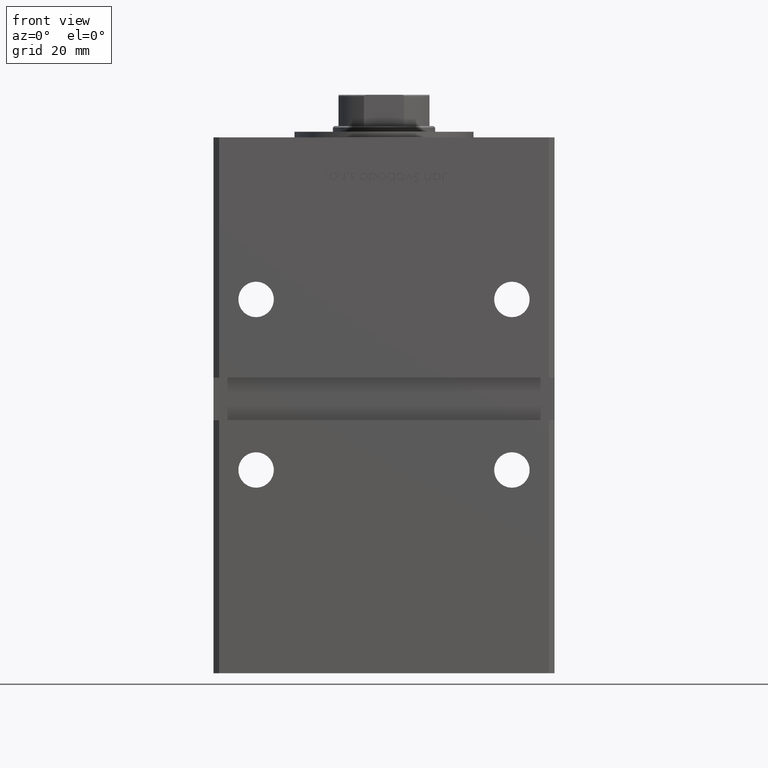
[diagram: clean part render]
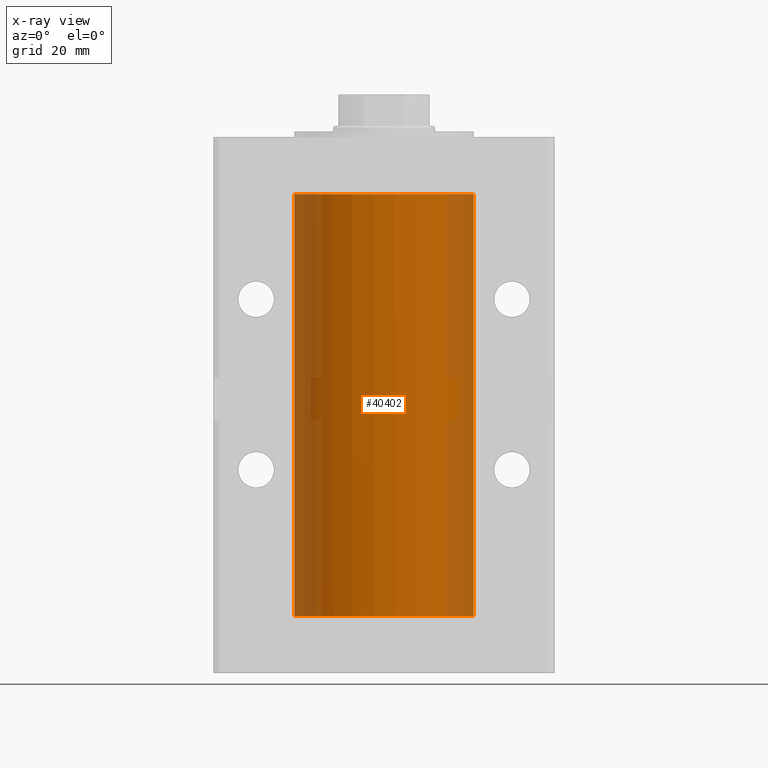
[diagram: x-ray — body ghosted, one internal face saturated and labeled with its STEP entity id]
A machine part, front view, then the same camera in x-ray: the body is ghosted and one INTERNAL B-rep face — a face not visible from any outside direction — is saturated and labeled: STEP entity #40402.
In plain terms, the highlighted cylindrical surface (partial cylindrical patch) has radius 31.5 mm, axis along (-0, -0, -1).
Its self-contained STEP definition (entity closure, byte-faithful):
#121 = CARTESIAN_POINT ( 'NONE',  ( 0.000000000000000000, 0.000000000000000000, 148.5000000000000000 ) ) ;
#2584 = VECTOR ( 'NONE', #42017, 1000.000000000000000 ) ;
#5220 = CARTESIAN_POINT ( 'NONE',  ( -31.50000000000000000, 0.000000000000000000, 148.5000000000000000 ) ) ;
#7145 = DIRECTION ( 'NONE',  ( -0.000000000000000000, 0.000000000000000000, 1.000000000000000000 ) ) ;
#10671 = CARTESIAN_POINT ( 'NONE',  ( 31.50000000000000000, 3.857637417314162689E-15, 0.000000000000000000 ) ) ;
#11090 = EDGE_CURVE ( 'NONE', #38745, #14733, #49705, .T. ) ;
#11946 = CYLINDRICAL_SURFACE ( 'NONE', #12916, 31.50000000000000000 ) ;
#12537 = ORIENTED_EDGE ( 'NONE', *, *, #15988, .T. ) ;
#12916 = AXIS2_PLACEMENT_3D ( 'NONE', #121, #44686, #16491 ) ;
#13659 = ORIENTED_EDGE ( 'NONE', *, *, #47388, .F. ) ;
#14733 = VERTEX_POINT ( 'NONE', #10671 ) ;
#15988 = EDGE_CURVE ( 'NONE', #27866, #14733, #45518, .T. ) ;
#16491 = DIRECTION ( 'NONE',  ( -1.000000000000000000, 0.000000000000000000, 0.000000000000000000 ) ) ;
#22105 = DIRECTION ( 'NONE',  ( -0.000000000000000000, 0.000000000000000000, 1.000000000000000000 ) ) ;
#23126 = ORIENTED_EDGE ( 'NONE', *, *, #11090, .F. ) ;
#24970 = VECTOR ( 'NONE', #29102, 1000.000000000000000 ) ;
#25101 = CARTESIAN_POINT ( 'NONE',  ( 31.50000000000000000, 3.857637417314162689E-15, 148.5000000000000000 ) ) ;
#26393 = EDGE_LOOP ( 'NONE', ( #42448, #12537, #23126, #13659 ) ) ;
#27866 = VERTEX_POINT ( 'NONE', #39245 ) ;
#29102 = DIRECTION ( 'NONE',  ( -0.000000000000000000, -0.000000000000000000, -1.000000000000000000 ) ) ;
#32218 = CARTESIAN_POINT ( 'NONE',  ( 0.000000000000000000, 0.000000000000000000, 0.000000000000000000 ) ) ;
#33881 = CARTESIAN_POINT ( 'NONE',  ( -31.50000000000000000, 0.000000000000000000, 0.000000000000000000 ) ) ;
#35856 = DIRECTION ( 'NONE',  ( 1.000000000000000000, 0.000000000000000000, 0.000000000000000000 ) ) ;
#38474 = DIRECTION ( 'NONE',  ( 1.000000000000000000, 0.000000000000000000, 0.000000000000000000 ) ) ;
#38745 = VERTEX_POINT ( 'NONE', #33881 ) ;
#39245 = CARTESIAN_POINT ( 'NONE',  ( 31.50000000000000000, 3.857637417314162689E-15, 148.5000000000000000 ) ) ;
#40402 = ADVANCED_FACE ( 'NONE', ( #48715 ), #11946, .F. ) ;
#40416 = EDGE_CURVE ( 'NONE', #46805, #27866, #46331, .T. ) ;
#41973 = LINE ( 'NONE', #5220, #24970 ) ;
#42017 = DIRECTION ( 'NONE',  ( -0.000000000000000000, -0.000000000000000000, -1.000000000000000000 ) ) ;
#42358 = CARTESIAN_POINT ( 'NONE',  ( -31.50000000000000000, 0.000000000000000000, 148.5000000000000000 ) ) ;
#42448 = ORIENTED_EDGE ( 'NONE', *, *, #40416, .T. ) ;
#43903 = CARTESIAN_POINT ( 'NONE',  ( 0.000000000000000000, 0.000000000000000000, 148.5000000000000000 ) ) ;
#44638 = AXIS2_PLACEMENT_3D ( 'NONE', #43903, #7145, #35856 ) ;
#44686 = DIRECTION ( 'NONE',  ( -0.000000000000000000, -0.000000000000000000, -1.000000000000000000 ) ) ;
#45518 = LINE ( 'NONE', #25101, #2584 ) ;
#46331 = CIRCLE ( 'NONE', #44638, 31.50000000000000000 ) ;
#46805 = VERTEX_POINT ( 'NONE', #42358 ) ;
#47388 = EDGE_CURVE ( 'NONE', #46805, #38745, #41973, .T. ) ;
#47988 = AXIS2_PLACEMENT_3D ( 'NONE', #32218, #22105, #38474 ) ;
#48715 = FACE_OUTER_BOUND ( 'NONE', #26393, .T. ) ;
#49705 = CIRCLE ( 'NONE', #47988, 31.50000000000000000 ) ;